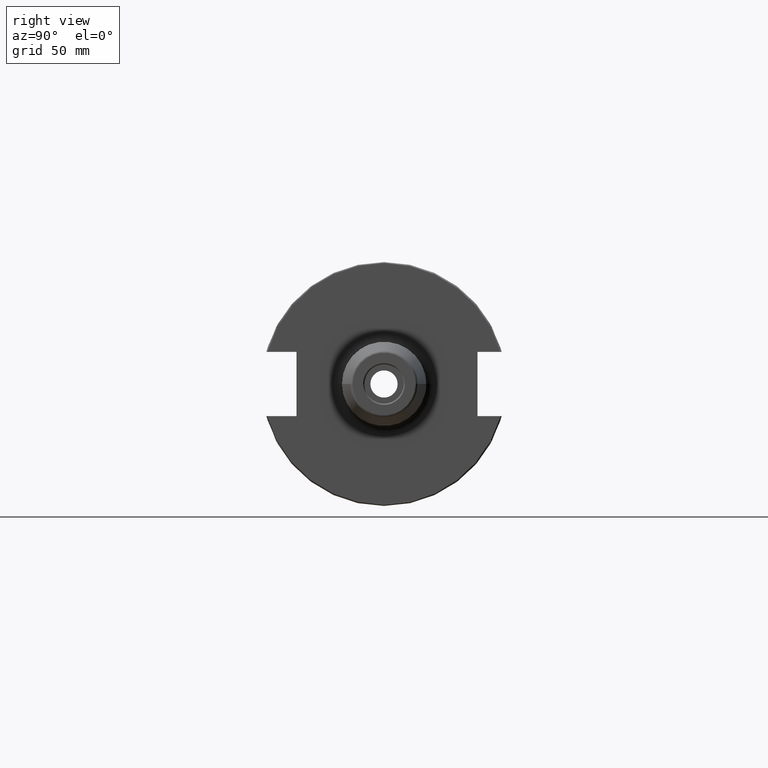
[diagram: clean part render]
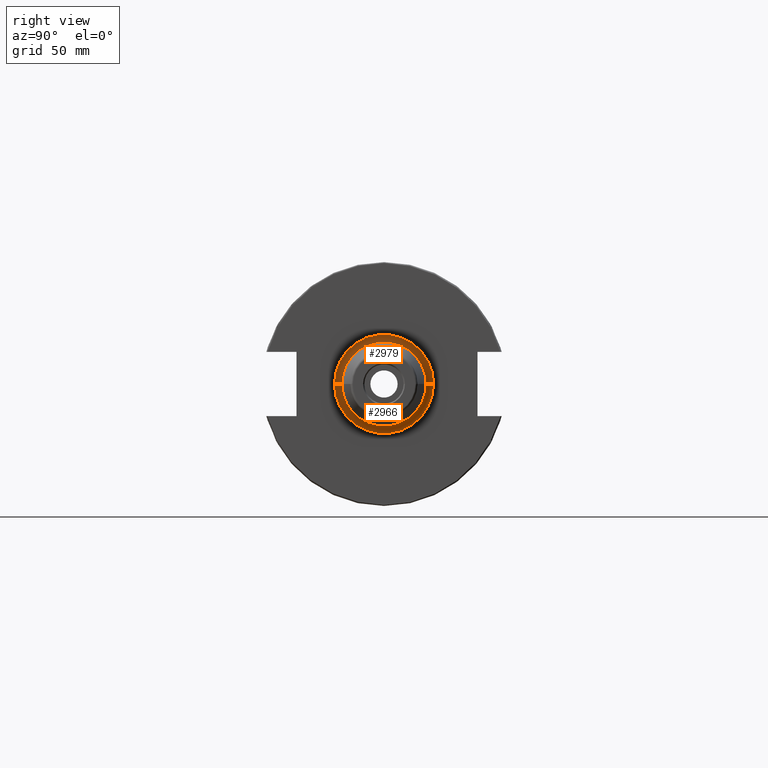
[diagram: same view with one multi-face feature highlighted, each face labeled with its STEP entity id]
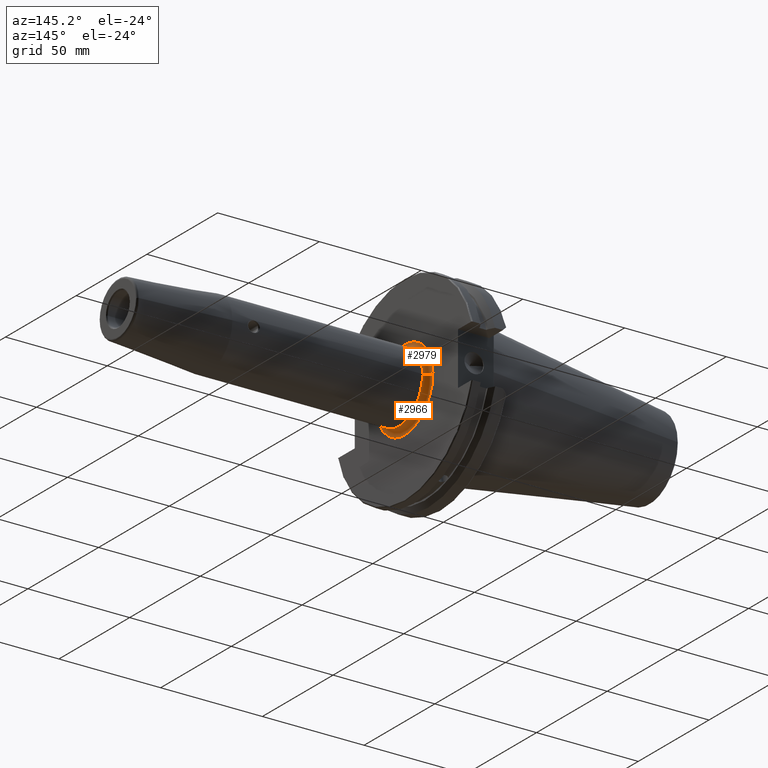
[diagram: same view with one multi-face feature highlighted, each face labeled with its STEP entity id]
A machine part, right view. The highlighted faces form ONE feature: a constant-radius fillet chain: 2 tangent blend faces with common blend radius 3 mm. The faces share edges in the B-rep.
A second angle (auxiliary view) of the same feature is appended — it is thin or edge-on in the first view.
Their STEP definitions:
[1] entity #2979 (Torus):
#578=CARTESIAN_POINT('',(1.905E1,0.E0,0.E0));
#579=DIRECTION('',(1.E0,0.E0,0.E0));
#580=DIRECTION('',(0.E0,1.E0,0.E0));
#581=AXIS2_PLACEMENT_3D('',#578,#579,#580);
#1086=CARTESIAN_POINT('',(2.205E1,-2.E1,3.873215081995E-10));
#1087=DIRECTION('',(0.E0,-1.936607818553E-11,-1.E0));
#1088=DIRECTION('',(-1.E0,6.888830246983E-11,0.E0));
#1089=AXIS2_PLACEMENT_3D('',#1086,#1087,#1088);
#1091=CARTESIAN_POINT('',(2.205E1,2.E1,-3.873326104298E-10));
#1092=DIRECTION('',(0.E0,1.936662635815E-11,1.E0));
#1093=DIRECTION('',(-1.E0,-6.889185518351E-11,0.E0));
#1094=AXIS2_PLACEMENT_3D('',#1091,#1092,#1093);
#1115=CARTESIAN_POINT('',(2.205E1,0.E0,0.E0));
#1116=DIRECTION('',(1.E0,0.E0,0.E0));
#1117=DIRECTION('',(0.E0,1.E0,0.E0));
#1118=AXIS2_PLACEMENT_3D('',#1115,#1116,#1117);
#1617=CARTESIAN_POINT('',(1.905E1,-2.E1,-2.266215559059E-14));
#1618=CARTESIAN_POINT('',(1.905E1,2.E1,1.133107779530E-14));
#1619=VERTEX_POINT('',#1617);
#1620=VERTEX_POINT('',#1618);
#1621=CARTESIAN_POINT('',(2.205E1,-1.7E1,0.E0));
#1622=CARTESIAN_POINT('',(2.205E1,1.7E1,0.E0));
#1623=VERTEX_POINT('',#1621);
#1624=VERTEX_POINT('',#1622);
#2967=CARTESIAN_POINT('',(2.205E1,0.E0,0.E0));
#2968=DIRECTION('',(1.E0,0.E0,0.E0));
#2969=DIRECTION('',(0.E0,9.996422265751E-1,-2.674731478116E-2));
#2970=AXIS2_PLACEMENT_3D('',#2967,#2968,#2969);
#2971=TOROIDAL_SURFACE('',#2970,2.E1,3.E0);
#2972=ORIENTED_EDGE('',*,*,#2331,.F.);
#2973=ORIENTED_EDGE('',*,*,#2962,.T.);
#2975=ORIENTED_EDGE('',*,*,#2974,.T.);
#2976=ORIENTED_EDGE('',*,*,#2958,.F.);
#2977=EDGE_LOOP('',(#2972,#2973,#2975,#2976));
#2978=FACE_OUTER_BOUND('',#2977,.F.);
#2979=ADVANCED_FACE('',(#2978),#2971,.F.);
#582=CIRCLE('',#581,2.E1);
#1090=CIRCLE('',#1089,3.E0);
#1095=CIRCLE('',#1094,3.E0);
#1119=CIRCLE('',#1118,1.7E1);
#2331=EDGE_CURVE('',#1620,#1619,#582,.T.);
#2958=EDGE_CURVE('',#1619,#1623,#1090,.T.);
#2962=EDGE_CURVE('',#1620,#1624,#1095,.T.);
#2974=EDGE_CURVE('',#1624,#1623,#1119,.T.);
[2] entity #2966 (Torus):
#573=CARTESIAN_POINT('',(1.905E1,0.E0,0.E0));
#574=DIRECTION('',(1.E0,0.E0,0.E0));
#575=DIRECTION('',(0.E0,-1.E0,0.E0));
#576=AXIS2_PLACEMENT_3D('',#573,#574,#575);
#1086=CARTESIAN_POINT('',(2.205E1,-2.E1,3.873215081995E-10));
#1087=DIRECTION('',(0.E0,-1.936607818553E-11,-1.E0));
#1088=DIRECTION('',(-1.E0,6.888830246983E-11,0.E0));
#1089=AXIS2_PLACEMENT_3D('',#1086,#1087,#1088);
#1091=CARTESIAN_POINT('',(2.205E1,2.E1,-3.873326104298E-10));
#1092=DIRECTION('',(0.E0,1.936662635815E-11,1.E0));
#1093=DIRECTION('',(-1.E0,-6.889185518351E-11,0.E0));
#1094=AXIS2_PLACEMENT_3D('',#1091,#1092,#1093);
#1156=CARTESIAN_POINT('',(2.205E1,0.E0,0.E0));
#1157=DIRECTION('',(1.E0,0.E0,0.E0));
#1158=DIRECTION('',(0.E0,-1.E0,0.E0));
#1159=AXIS2_PLACEMENT_3D('',#1156,#1157,#1158);
#1617=CARTESIAN_POINT('',(1.905E1,-2.E1,-2.266215559059E-14));
#1618=CARTESIAN_POINT('',(1.905E1,2.E1,1.133107779530E-14));
#1619=VERTEX_POINT('',#1617);
#1620=VERTEX_POINT('',#1618);
#1621=CARTESIAN_POINT('',(2.205E1,-1.7E1,0.E0));
#1622=CARTESIAN_POINT('',(2.205E1,1.7E1,0.E0));
#1623=VERTEX_POINT('',#1621);
#1624=VERTEX_POINT('',#1622);
#2952=CARTESIAN_POINT('',(2.205E1,0.E0,0.E0));
#2953=DIRECTION('',(1.E0,0.E0,0.E0));
#2954=DIRECTION('',(0.E0,-9.996422265751E-1,2.674731478116E-2));
#2955=AXIS2_PLACEMENT_3D('',#2952,#2953,#2954);
#2956=TOROIDAL_SURFACE('',#2955,2.E1,3.E0);
#2957=ORIENTED_EDGE('',*,*,#2329,.F.);
#2959=ORIENTED_EDGE('',*,*,#2958,.T.);
#2961=ORIENTED_EDGE('',*,*,#2960,.T.);
#2963=ORIENTED_EDGE('',*,*,#2962,.F.);
#2964=EDGE_LOOP('',(#2957,#2959,#2961,#2963));
#2965=FACE_OUTER_BOUND('',#2964,.F.);
#2966=ADVANCED_FACE('',(#2965),#2956,.F.);
#577=CIRCLE('',#576,2.E1);
#1090=CIRCLE('',#1089,3.E0);
#1095=CIRCLE('',#1094,3.E0);
#1160=CIRCLE('',#1159,1.7E1);
#2329=EDGE_CURVE('',#1619,#1620,#577,.T.);
#2958=EDGE_CURVE('',#1619,#1623,#1090,.T.);
#2960=EDGE_CURVE('',#1623,#1624,#1160,.T.);
#2962=EDGE_CURVE('',#1620,#1624,#1095,.T.);